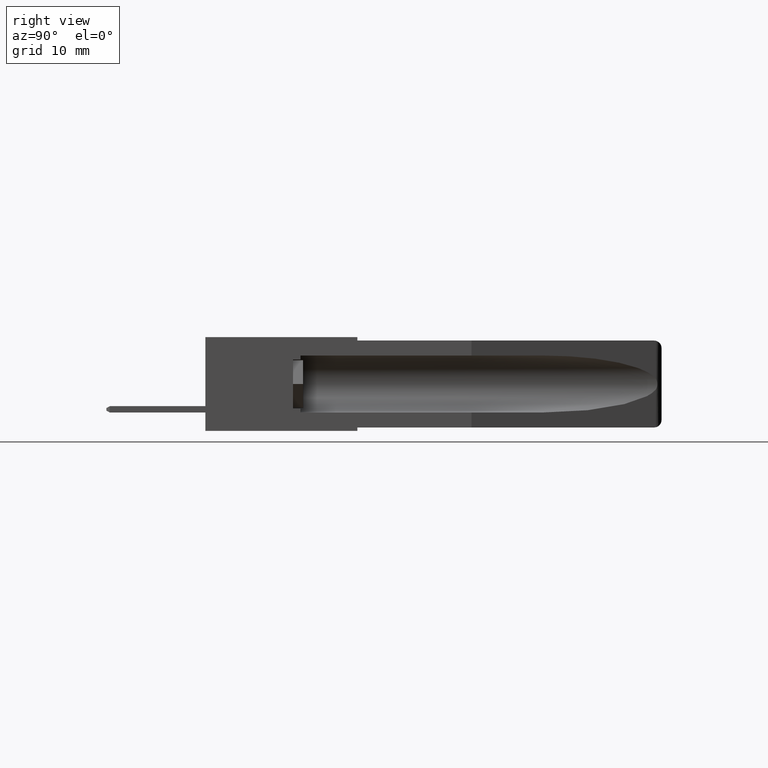
[diagram: clean part render]
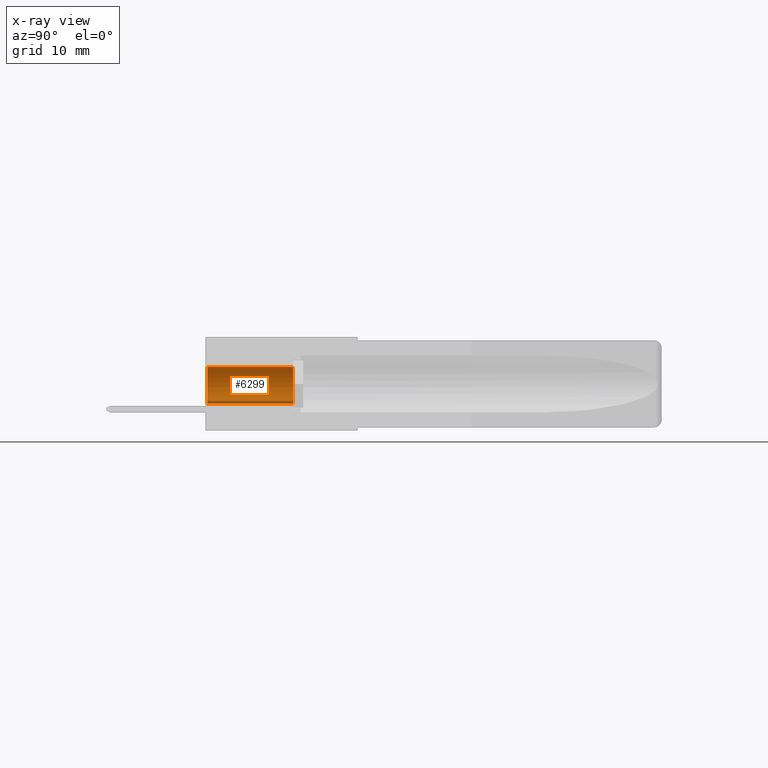
[diagram: x-ray — body ghosted, one internal face saturated and labeled with its STEP entity id]
A machine part, right view, then the same camera in x-ray: the body is ghosted and one INTERNAL B-rep face — a face not visible from any outside direction — is saturated and labeled: STEP entity #6299.
In plain terms, the highlighted cylindrical surface (edge-blend (fillet) strip) has radius 1.9685 mm, axis along (0, 1, -0).
Its self-contained STEP definition (entity closure, byte-faithful):
#790 = DIRECTION ( 'NONE',  ( 4.143408735633859600E-016, -1.000000000000000000, 2.220446049250302500E-016 ) ) ;
#818 = CIRCLE ( 'NONE', #10866, 0.07749999999999988800 ) ;
#979 = CARTESIAN_POINT ( 'NONE',  ( 0.0000000000000000000, 0.03999999999999998000, 0.0000000000000000000 ) ) ;
#1293 = VERTEX_POINT ( 'NONE', #10779 ) ;
#1336 = VECTOR ( 'NONE', #4065, 39.37007874015748100 ) ;
#1627 = LINE ( 'NONE', #1637, #5804 ) ;
#1637 = CARTESIAN_POINT ( 'NONE',  ( -5.712954998028405400E-016, 0.3780000000000000600, 0.07749999999999948600 ) ) ;
#1716 = DIRECTION ( 'NONE',  ( 4.143408735633859100E-016, -1.000000000000000000, 2.220446049250302700E-016 ) ) ;
#1904 = DIRECTION ( 'NONE',  ( -4.143408735633859600E-016, 1.000000000000000000, -2.220446049250302500E-016 ) ) ;
#2118 = VERTEX_POINT ( 'NONE', #11266 ) ;
#2460 = CYLINDRICAL_SURFACE ( 'NONE', #9268, 0.07749999999999988800 ) ;
#2577 = CARTESIAN_POINT ( 'NONE',  ( -4.419290773372603900E-016, 0.3780000000000000600, -0.07750000000000040200 ) ) ;
#2715 = ORIENTED_EDGE ( 'NONE', *, *, #6038, .F. ) ;
#3389 = DIRECTION ( 'NONE',  ( 4.440892098500628100E-016, 0.0000000000000000000, -1.000000000000000000 ) ) ;
#3397 = EDGE_LOOP ( 'NONE', ( #2715, #6538, #10624, #3616 ) ) ;
#3616 = ORIENTED_EDGE ( 'NONE', *, *, #10356, .T. ) ;
#3686 = CARTESIAN_POINT ( 'NONE',  ( -5.463695987328526400E-016, 0.3780000000000000600, -4.097771990496394800E-016 ) ) ;
#3817 = EDGE_CURVE ( 'NONE', #5525, #1293, #818, .T. ) ;
#4065 = DIRECTION ( 'NONE',  ( 4.143408735633859100E-016, -1.000000000000000000, 2.220446049250302700E-016 ) ) ;
#4121 = CIRCLE ( 'NONE', #6856, 0.07749999999999988800 ) ;
#5525 = VERTEX_POINT ( 'NONE', #2577 ) ;
#5804 = VECTOR ( 'NONE', #1716, 39.37007874015748100 ) ;
#6038 = EDGE_CURVE ( 'NONE', #1293, #11437, #1627, .T. ) ;
#6277 = CARTESIAN_POINT ( 'NONE',  ( -5.012718921706313600E-016, 0.04000000000000000100, 0.07749999999999999900 ) ) ;
#6299 = ADVANCED_FACE ( 'NONE', ( #7652 ), #2460, .T. ) ;
#6538 = ORIENTED_EDGE ( 'NONE', *, *, #3817, .F. ) ;
#6856 = AXIS2_PLACEMENT_3D ( 'NONE', #979, #1904, #8178 ) ;
#7652 = FACE_OUTER_BOUND ( 'NONE', #3397, .T. ) ;
#8178 = DIRECTION ( 'NONE',  ( -4.440892098500632100E-016, -2.203103220696989700E-016, 1.000000000000000000 ) ) ;
#8485 = LINE ( 'NONE', #11343, #1336 ) ;
#9268 = AXIS2_PLACEMENT_3D ( 'NONE', #11528, #790, #3389 ) ;
#9866 = DIRECTION ( 'NONE',  ( -4.440892098500628100E-016, 0.0000000000000000000, 1.000000000000000000 ) ) ;
#9947 = EDGE_CURVE ( 'NONE', #5525, #2118, #8485, .T. ) ;
#9950 = DIRECTION ( 'NONE',  ( -4.143408735633859600E-016, 1.000000000000000000, -2.220446049250302500E-016 ) ) ;
#10356 = EDGE_CURVE ( 'NONE', #2118, #11437, #4121, .T. ) ;
#10624 = ORIENTED_EDGE ( 'NONE', *, *, #9947, .T. ) ;
#10779 = CARTESIAN_POINT ( 'NONE',  ( -5.012718921706282000E-016, 0.3780000000000000600, 0.07749999999999958300 ) ) ;
#10866 = AXIS2_PLACEMENT_3D ( 'NONE', #3686, #9950, #9866 ) ;
#11266 = CARTESIAN_POINT ( 'NONE',  ( -4.419290773372602000E-016, 0.03999999999999996600, -0.07749999999999999900 ) ) ;
#11343 = CARTESIAN_POINT ( 'NONE',  ( -5.119526849694728300E-016, 0.3780000000000000600, -0.07750000000000030500 ) ) ;
#11437 = VERTEX_POINT ( 'NONE', #6277 ) ;
#11528 = CARTESIAN_POINT ( 'NONE',  ( -5.463695987328526400E-016, 0.3780000000000000600, -4.097771990496394800E-016 ) ) ;